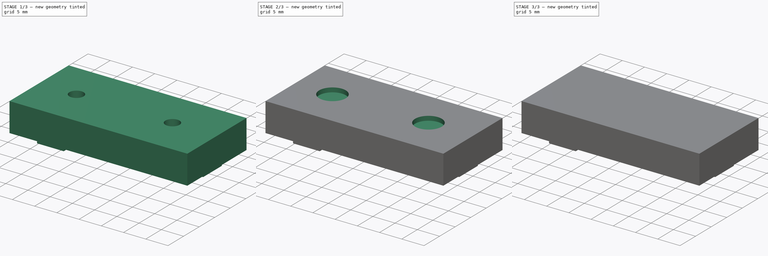
[diagram: build sequence overview — one tinted view per stage of 3, left to right]
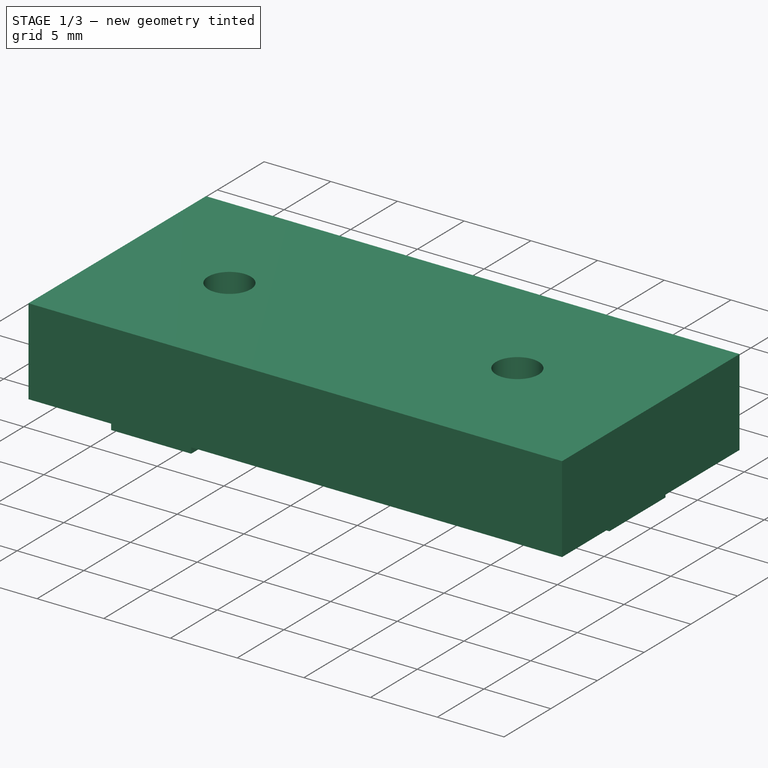
[diagram: stage 1 of 3 — iso view after this stage's code; geometry added in this stage tinted green]
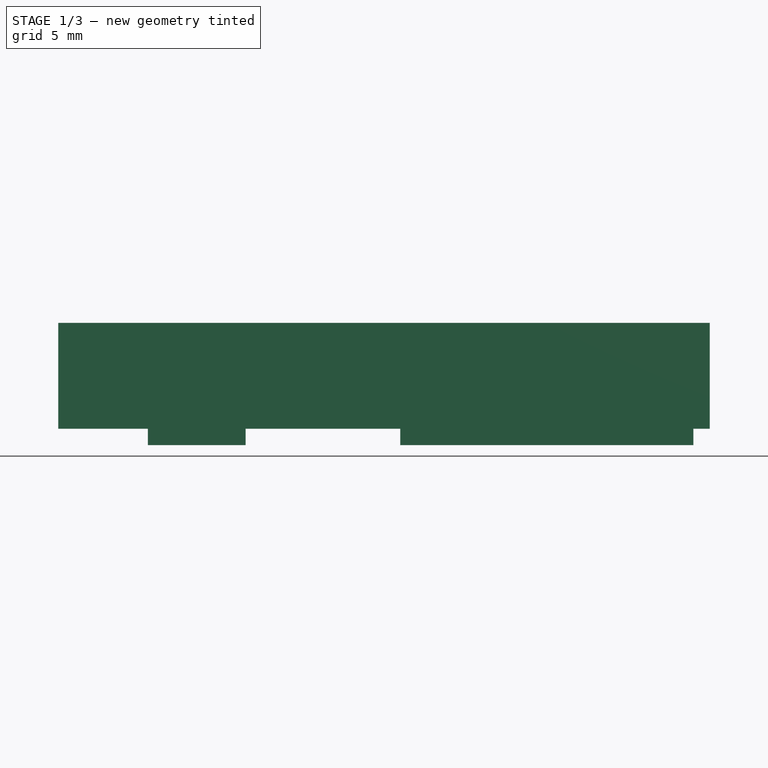
[diagram: stage 1 of 3 — front view after this stage's code; geometry added in this stage tinted green]
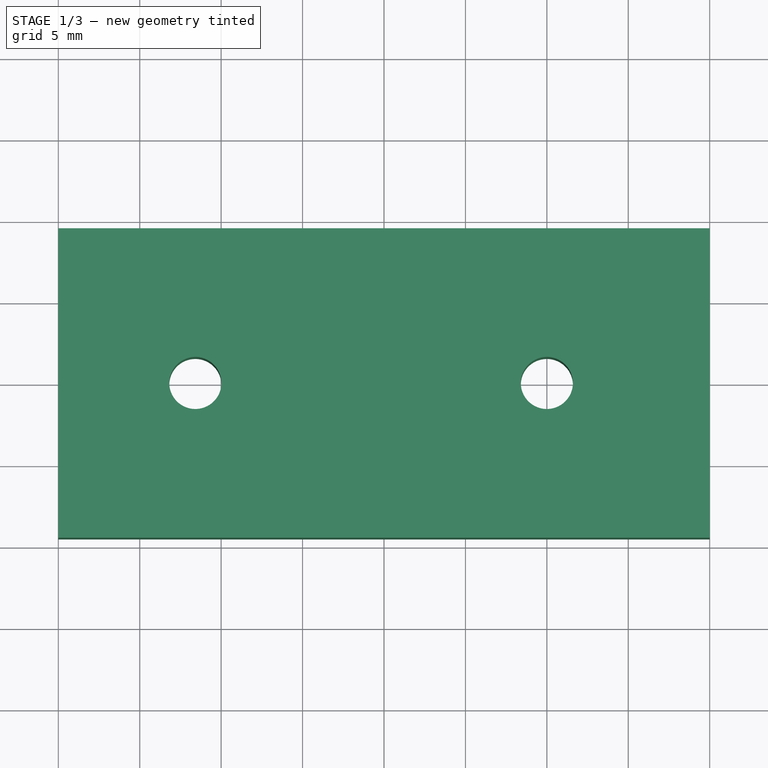
[diagram: stage 1 of 3 — top view after this stage's code; geometry added in this stage tinted green]
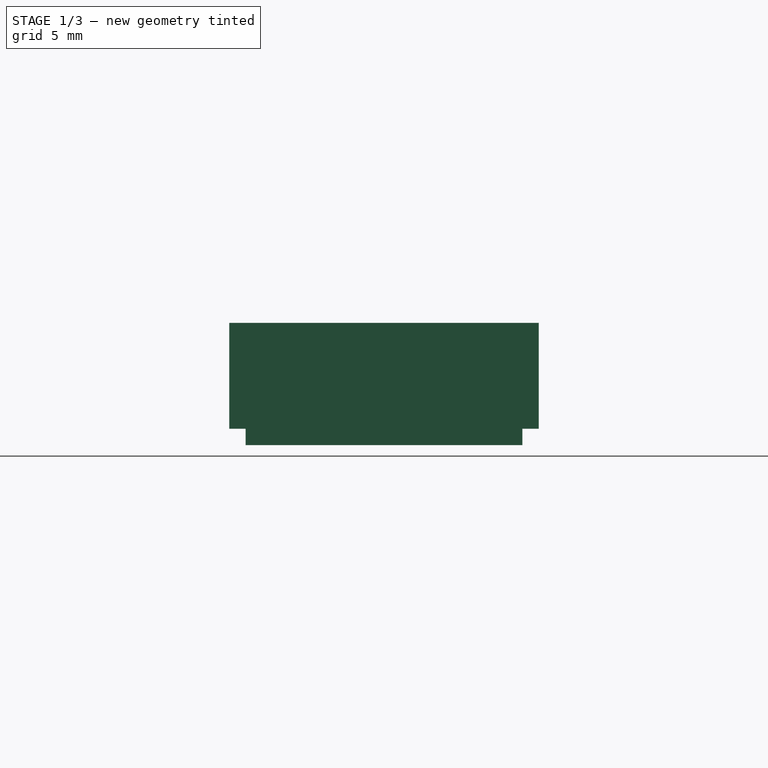
[diagram: stage 1 of 3 — right view after this stage's code; geometry added in this stage tinted green]
FCSTD DOCUMENT  (FreeCAD 0.16R5119 (Git))
Label: h-bracket
License: All rights reserved
LicenseURL: https://ru.wikipedia.org/wiki/All_rights_reserved
objects: Sketcher::SketchObject×4, PartDesign::Pad×3, PartDesign::Pocket×2, Part::Fillet×1
note: 15 computed .brp shape members not serialized (recipe doc carries the construction recipe); baked Part::Feature solids carry a one-line shape summary decoded from their .brp

FEATURE [PartDesign::Pad] Pad001
  Length = 1
  Length2 = 100
  Type = 0
FEATURE [Sketcher::SketchObject] Sketch002  label="m3 holes"
  ExternalGeometry = -> [Pad001]
  Placement = pos=(0,0,6.5) rot=(0,0,1;0rad)
  Support = -> Pad001 [Face5]
  sketch-geometry (5):
    g0: Circle CenterX=-11.5848 CenterY=0 CenterZ=0 NormalX=0 NormalY=0 NormalZ=1 Radius=1.6
    g1: LineSegment [constr] StartX=-11.5848 StartY=8.49999 StartZ=0 EndX=-11.5848 EndY=0 EndZ=0
    g2: Circle CenterX=10 CenterY=0 CenterZ=0 NormalX=0 NormalY=0 NormalZ=1 Radius=1.6
    g3: LineSegment [constr] StartX=10 StartY=0 StartZ=0 EndX=1 EndY=3 EndZ=0
    g4: LineSegment [constr] StartX=10 StartY=0 StartZ=0 EndX=19 EndY=3 EndZ=0
  constraints (12):
    c: Radius(g0) = 1.6
    c: PointOnObject(g0,g-1)
    c: Coincident(g1,g0)
    c: Perpendicular(g-4,g1)
    c: Radius(g2) = 1.6
    c: PointOnObject(g2,g-1)
    c: Coincident(g3,g2)
    c: Coincident(g4,g-6)
    c: PointOnObject(g4,g-1)
    c: Coincident(g4,g2)
    c: Equal(g4,g3)
    c: Coincident(g-5,g3)
FEATURE [PartDesign::Pocket] Pocket
  Length = 5
  Sketch = -> Sketch002
  Type = 1
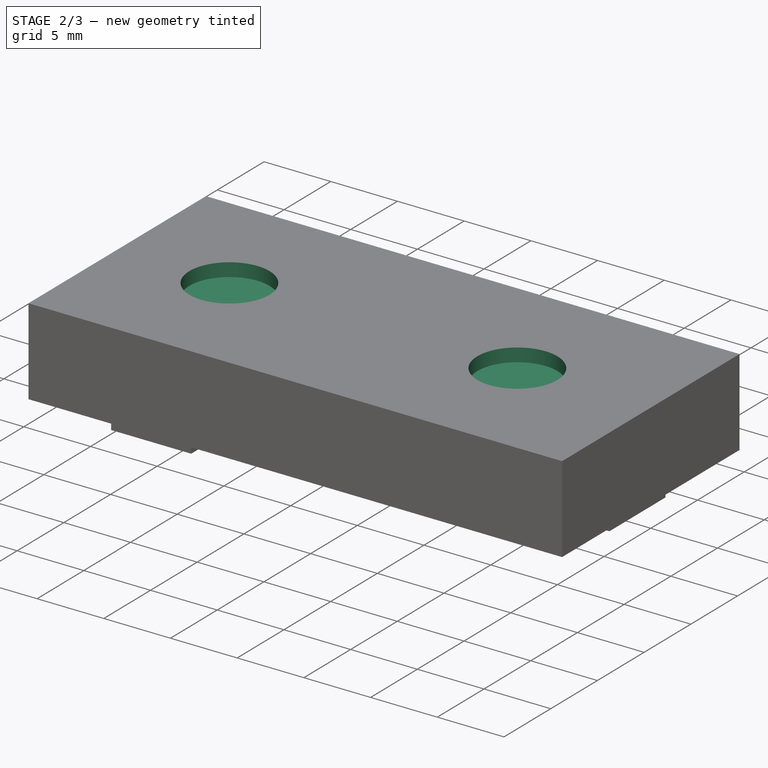
[diagram: stage 2 of 3 — iso view after this stage's code; geometry added in this stage tinted green]
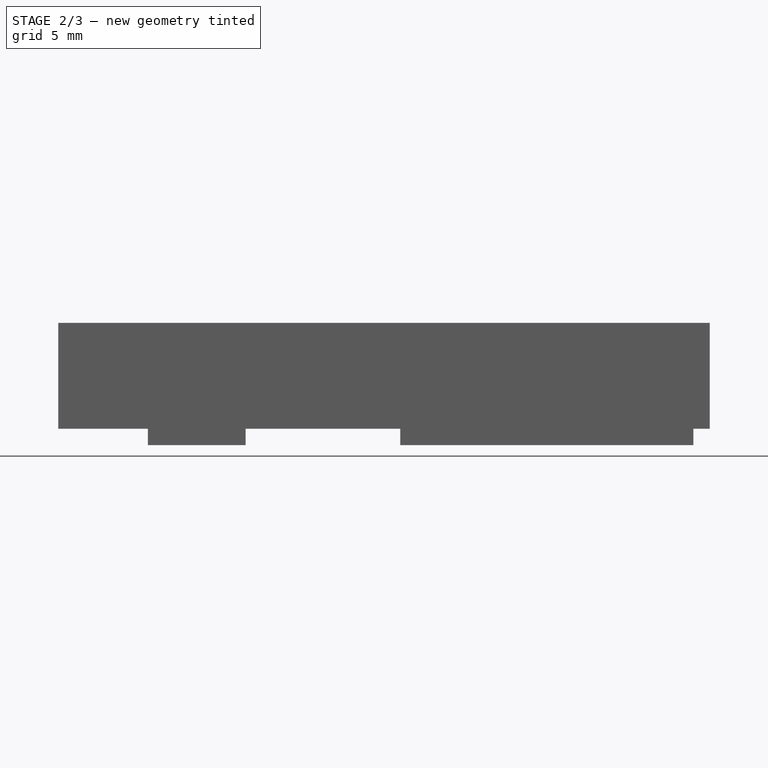
[diagram: stage 2 of 3 — front view after this stage's code; geometry added in this stage tinted green]
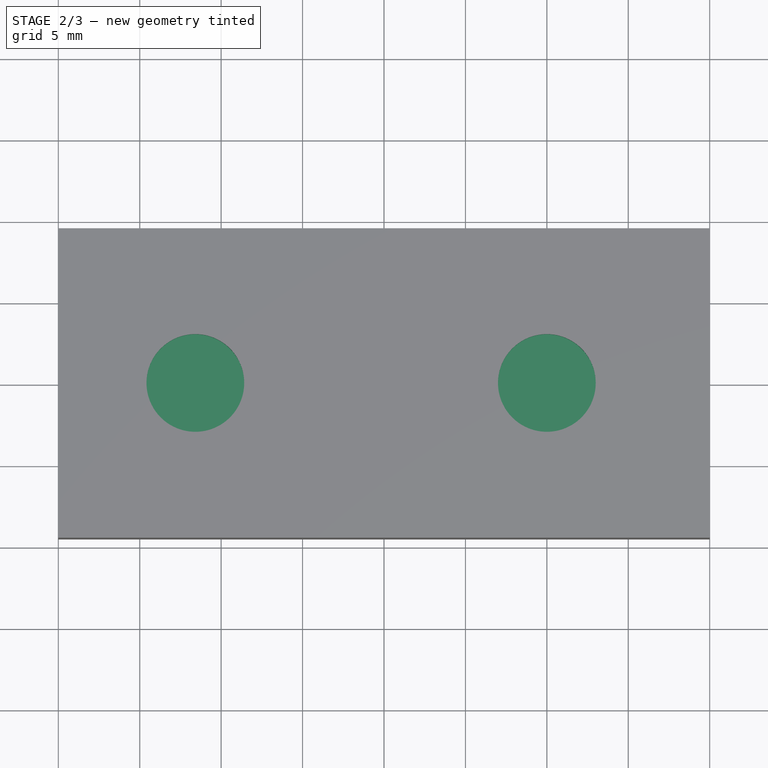
[diagram: stage 2 of 3 — top view after this stage's code; geometry added in this stage tinted green]
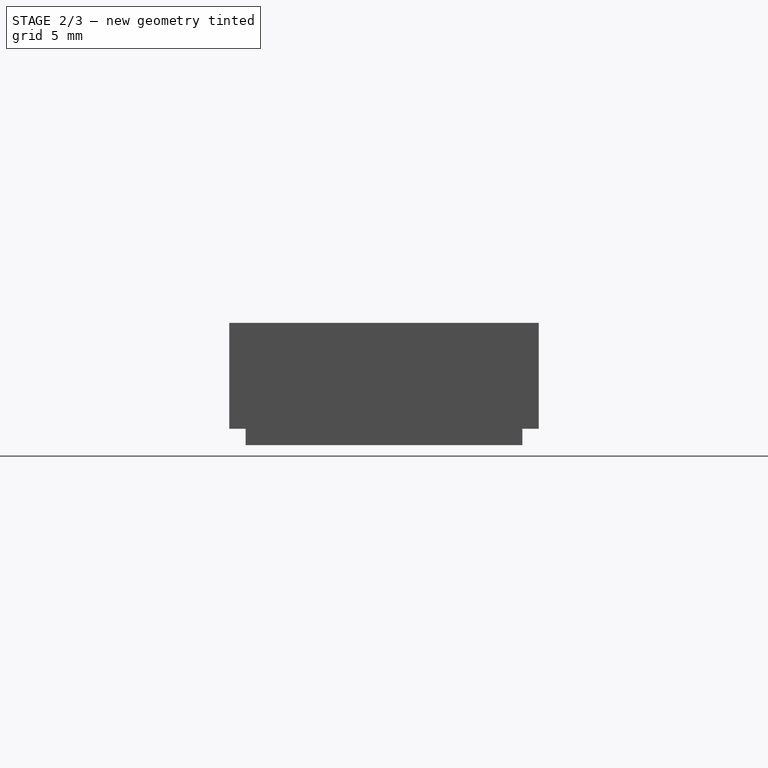
[diagram: stage 2 of 3 — right view after this stage's code; geometry added in this stage tinted green]
FEATURE [Sketcher::SketchObject] Sketch003  label="m3 heads"
  ExternalGeometry = -> [Pocket]
  Placement = pos=(0,0,6.5) rot=(0,0,1;0rad)
  Support = -> Pocket [Face5]
  sketch-geometry (2):
    g0: Circle CenterX=-11.5848 CenterY=0 CenterZ=0 NormalX=0 NormalY=0 NormalZ=1 Radius=3
    g1: Circle CenterX=10 CenterY=0 CenterZ=0 NormalX=0 NormalY=0 NormalZ=1 Radius=3
  constraints (4):
    c: Coincident(g0,g-3)
    c: Coincident(g1,g-4)
    c: Radius(g0) = 3
    c: Equal(g0,g1)
FEATURE [PartDesign::Pocket] Pocket001
  Length = 1
  Sketch = -> Sketch003
  Type = 0
FEATURE [Sketcher::SketchObject] Sketch004  label="m3 print support"
  ExternalGeometry = -> [Pocket001]
  Placement = pos=(0,0,5.5) rot=(0,0,1;0rad)
  Support = -> Pocket001 [Face20]
  sketch-geometry (2):
    g0: Circle CenterX=-11.5848 CenterY=0 CenterZ=0 NormalX=0 NormalY=0 NormalZ=1 Radius=3
    g1: Circle CenterX=10 CenterY=0 CenterZ=0 NormalX=0 NormalY=0 NormalZ=1 Radius=3
  constraints (4):
    c: Coincident(g1,g-4)
    c: Coincident(g0,g-5)
    c: Equal(g0,g-5)
    c: Equal(g-5,g1)
FEATURE [PartDesign::Pad] Pad002
  Length = 0.2
  Length2 = 100
  Reversed = true
  Sketch = -> Sketch004
  Type = 0
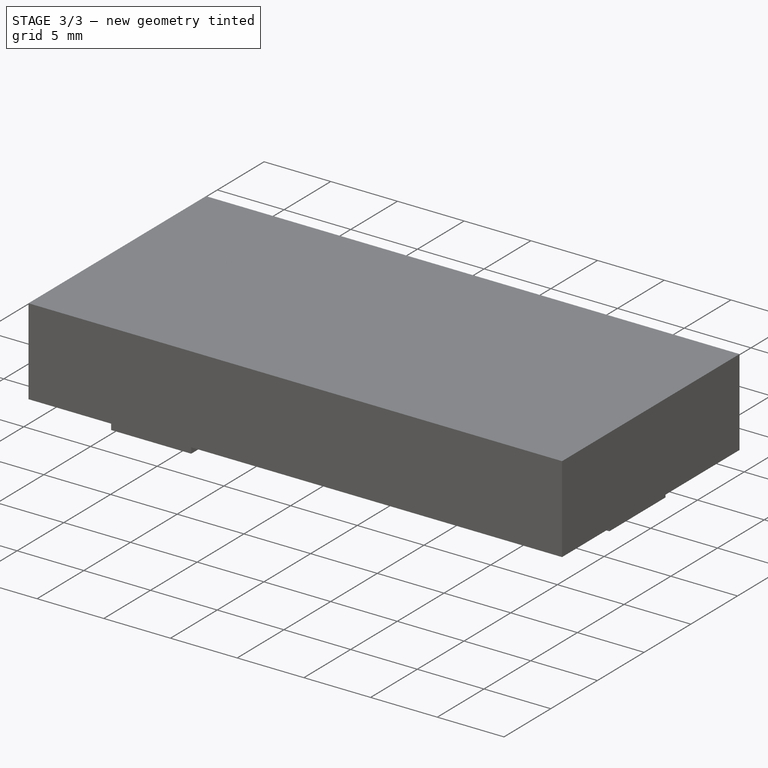
[diagram: stage 3 of 3 — iso view after this stage's code; geometry added in this stage tinted green]
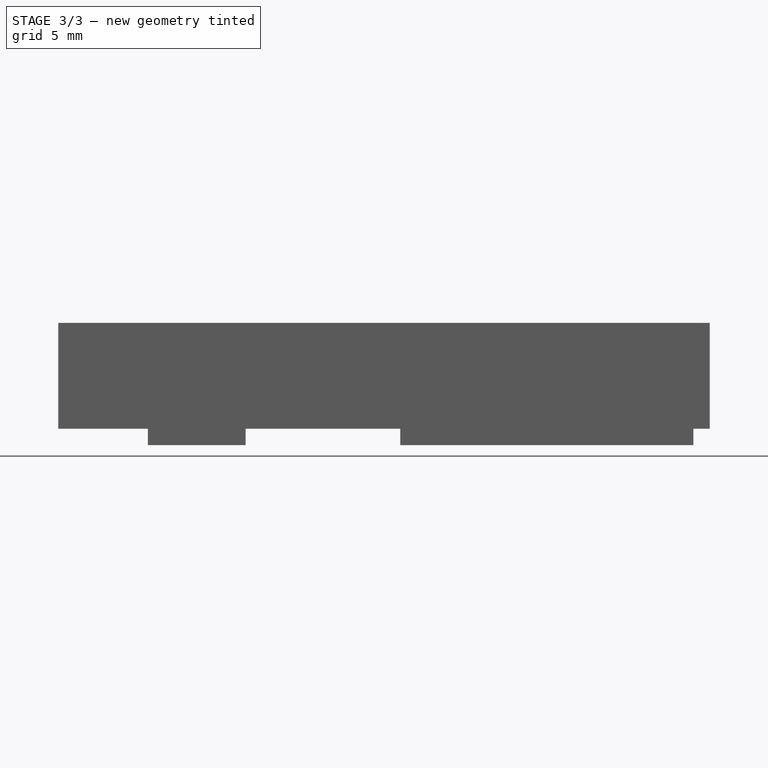
[diagram: stage 3 of 3 — front view after this stage's code; geometry added in this stage tinted green]
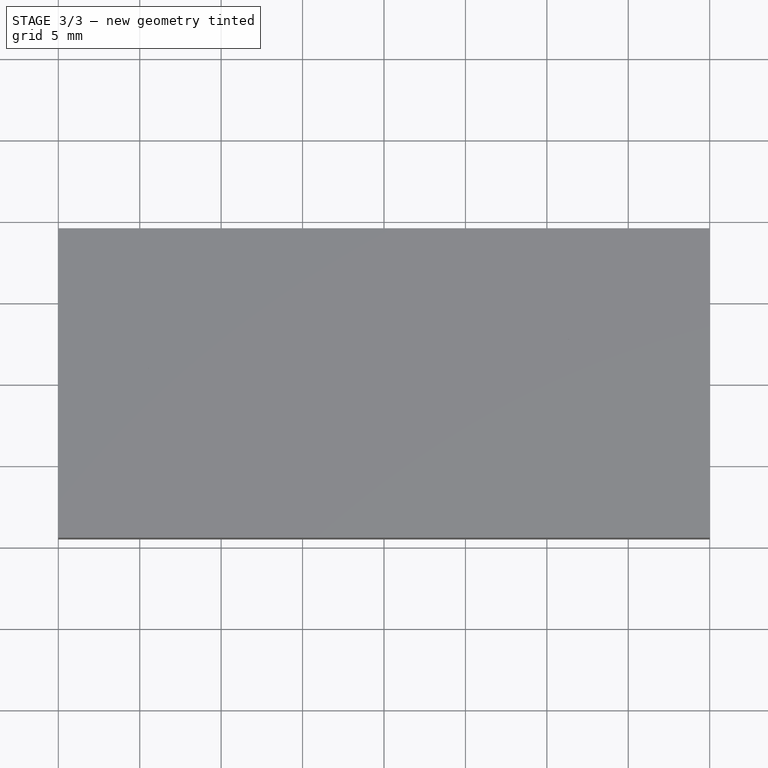
[diagram: stage 3 of 3 — top view after this stage's code; geometry added in this stage tinted green]
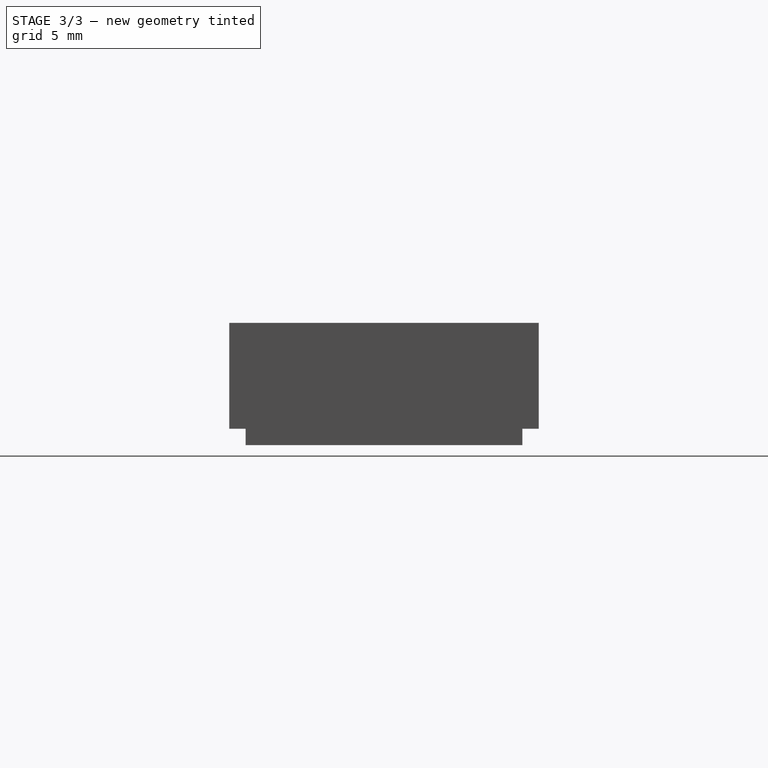
[diagram: stage 3 of 3 — right view after this stage's code; geometry added in this stage tinted green]
FEATURE [Sketcher::SketchObject] Sketch  label="body"
  sketch-geometry (4):
    g0: LineSegment StartX=-20 StartY=9.5 StartZ=0 EndX=20 EndY=9.5 EndZ=0
    g1: LineSegment StartX=20 StartY=9.5 StartZ=0 EndX=20 EndY=-9.5 EndZ=0
    g2: LineSegment StartX=20 StartY=-9.5 StartZ=0 EndX=-20 EndY=-9.5 EndZ=0
    g3: LineSegment StartX=-20 StartY=-9.5 StartZ=0 EndX=-20 EndY=9.5 EndZ=0
  constraints (12):
    c: Coincident(g0,g1)
    c: Coincident(g1,g2)
    c: Coincident(g2,g3)
    c: Coincident(g3,g0)
    c: Horizontal(g0)
    c: Horizontal(g2)
    c: Vertical(g1)
    c: Vertical(g3)
    c: DistanceX(g0) = 40
    c: DistanceY(g3) = 19
    c: Symmetric(g0,g1,g-1)
    c: Symmetric(g0,g0,g-2)
FEATURE [PartDesign::Pad] Pad
  Length = 6.5
  Length2 = 100
  Sketch = -> Sketch
  Type = 0
FEATURE [Part::Fillet] Fillet
  Base = -> Pad002
  Edges = 8 edges r=2: [Edge1,Edge2,Edge4,Edge5,Edge7,Edge8,Edge10,Edge20]
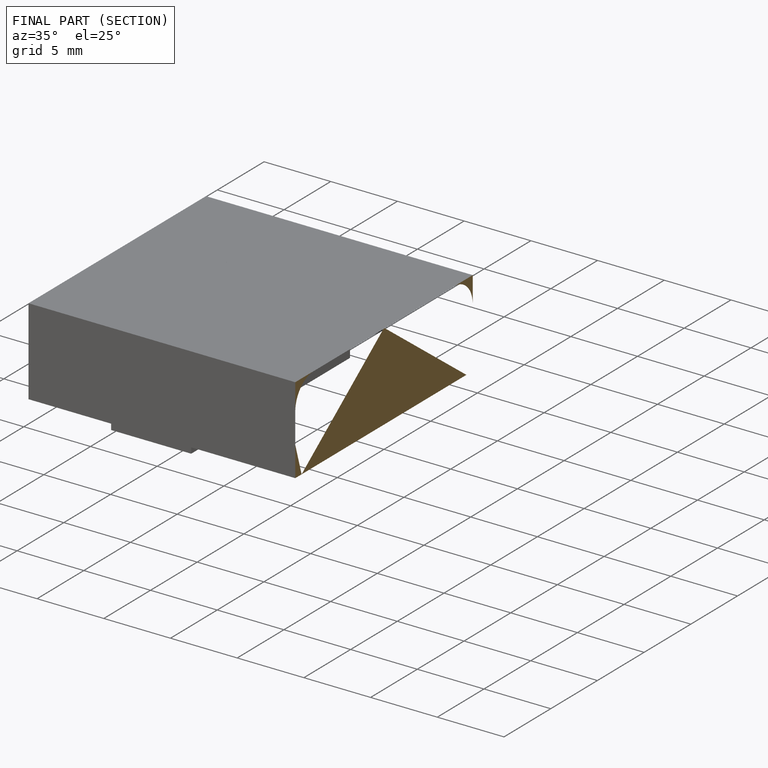
[diagram: finished part — half-section view (interior)]
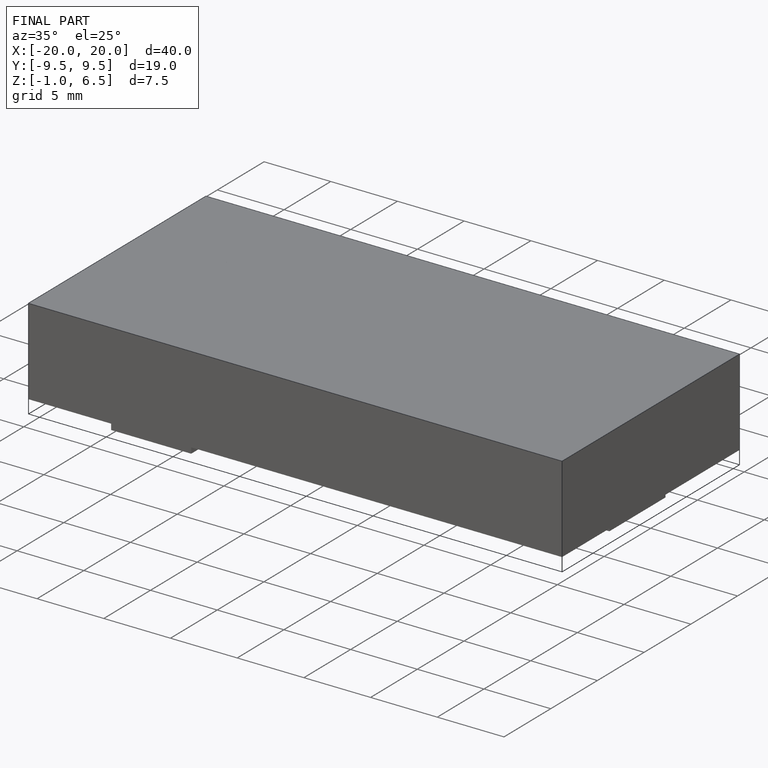
[diagram: finished part — iso view with bounding-box wireframe]
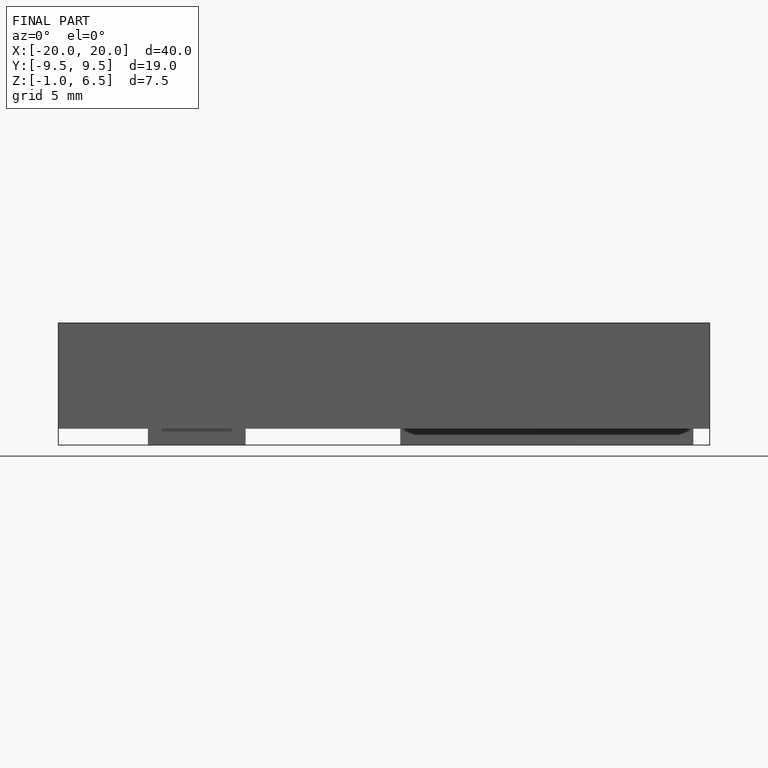
[diagram: finished part — front view with bounding-box wireframe]
